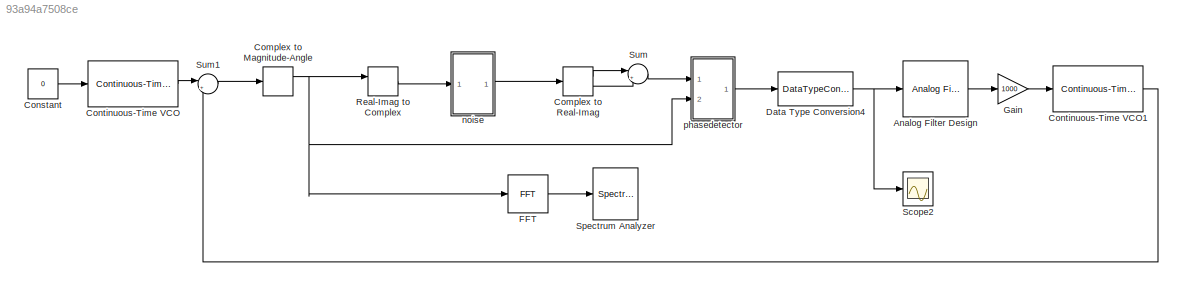
MODEL slx_93a94a7508ce
KIND model
CONFIG AbsTol = auto
CONFIG FixedStep = 1e-10
CONFIG MaxStep = auto
CONFIG MinStep = auto
CONFIG RelTol = 1e-3
CONFIG SampleTimeConstraint = Unconstrained
CONFIG Solver = FixedStepAuto
CONFIG SolverMode = Auto
CONFIG SolverName = FixedStepAuto
CONFIG StartTime = 0.0
CONFIG StopTime = 0.002
BLOCK [Reference] Analog Filter Design  REF=dsparch4/Analog
Filter Design
  Ports = [1, 1]
  SourceBlock = dsparch4/Analog\nFilter Design
  SourceType = Analog Filter Design
BLOCK [ComplexToMagnitudeAngle] Complex to Magnitude-Angle
  Ports = [1, 2]
BLOCK [ComplexToRealImag] Complex to Real-Imag
  Ports = [1, 2]
BLOCK [Constant] Constant
  Value = 0
BLOCK [Reference] Continuous-Time VCO  REF=commsynccomp2/Continuous-Time
VCO
  Ports = [1, 1]
  SourceBlock = commsynccomp2/Continuous-Time\nVCO
  SourceType = Continuous-Time VCO
BLOCK [Reference] Continuous-Time VCO1  REF=commsynccomp2/Continuous-Time
VCO
  Ports = [1, 1]
  SourceBlock = commsynccomp2/Continuous-Time\nVCO
  SourceType = Continuous-Time VCO
BLOCK [DataTypeConversion] Data Type Conversion4
  OutDataTypeStr = double
  RndMeth = Floor
  SaturateOnIntegerOverflow = off
BLOCK [Reference] FFT  REF=dspxfrm3/FFT
  Ports = [1, 1]
  SourceBlock = dspxfrm3/FFT
  SourceType = FFT
BLOCK [Gain] Gain
  Gain = 1000
  OutDataTypeStr = Inherit: Inherit via internal rule
  ParamDataTypeStr = Inherit: Inherit via internal rule
  SaturateOnIntegerOverflow = off
BLOCK [RealImagToComplex] Real-Imag to Complex
  Ports = [2, 1]
BLOCK [Scope] Scope2
  Ports = [1]
  ScopeSpecificationString = Simulink.scopes.TimeScopeBlockCfg('CurrentConfiguration', extmgr.ConfigurationSet(extmgr.Configuration('Core','General UI',true),extmgr.Configuration('Core','Source UI',true),extmgr.Configuration('Sources','WiredSimulink',true),extmgr.Configuration('Visuals','Time Domain',true,'SerializedDisplays',{struct('MinYLimReal','-12.5','MaxYLimReal','12.5','YLabelReal','','MinYLimMag','0.00000','MaxYLimMag...<+1417ch>
BLOCK [SpectrumAnalyzer] Spectrum Analyzer
  Ports = [1]
  ScopeSpecificationString = spbscopes.SpectrumAnalyzerBlockCfg('CurrentConfiguration', extmgr.ConfigurationSet(extmgr.Configuration('Core','General UI',true),extmgr.Configuration('Core','Source UI',true),extmgr.Configuration('Sources','WiredSimulink',true),extmgr.Configuration('Sources','Simulink',false),extmgr.Configuration('Sources','File',false),extmgr.Configuration('Sources','Workspace',false),extmgr.Configuration('Sourc...<+2866ch>
BLOCK [Sum] Sum
  IconShape = round
  InputSameDT = off
  Inputs = |++
  OutDataTypeStr = Inherit: Inherit via internal rule
  Ports = [2, 1]
  SaturateOnIntegerOverflow = off
BLOCK [Sum] Sum1
  IconShape = round
  InputSameDT = off
  Inputs = |++
  OutDataTypeStr = Inherit: Inherit via internal rule
  Ports = [2, 1]
  SaturateOnIntegerOverflow = off
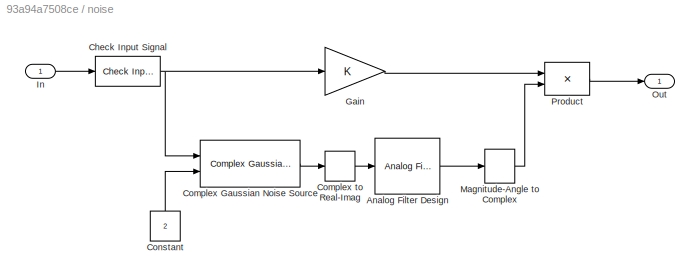
BLOCK [SubSystem] noise 
  Ports = [1, 1]
  RequestExecContextInheritance = off
  Variant = off
BLOCK [Reference] noise /Analog Filter Design  REF=dsparch4/Analog
Filter Design
  Ports = [1, 1]
  SourceBlock = dsparch4/Analog\nFilter Design
  SourceType = Analog Filter Design
BLOCK [Reference] noise /Check Input Signal  REF=rfmathmodels1/Mixer/Check
Input Signal
  Ports = [1, 1]
  SourceBlock = rfmathmodels1/Mixer/Check\nInput Signal
BLOCK [Reference] noise /Complex Gaussian Noise Source  REF=rfprivate1/Complex Gaussian
Noise Source
  Ports = [2, 1]
  SourceBlock = rfprivate1/Complex Gaussian\nNoise Source
  SourceType = Complex Gaussian Noise Source
BLOCK [ComplexToRealImag] noise /Complex to Real-Imag
  Output = Real
  Ports = [1, 1]
BLOCK [Constant] noise /Constant
  Value = 2
BLOCK [Gain] noise /Gain
BLOCK [Inport] noise /In
  IconDisplay = Port number
BLOCK [MagnitudeAngleToComplex] noise /Magnitude-Angle to Complex
  ConstantPart = 1
  Input = Angle
  Ports = [1, 1]
BLOCK [Outport] noise /Out
  IconDisplay = Port number
BLOCK [Product] noise /Product
  Ports = [2, 1]
  RndMeth = Floor
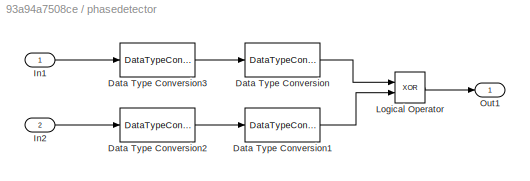
BLOCK [SubSystem] phasedetector 
  Ports = [2, 1]
  RequestExecContextInheritance = off
  Variant = off
BLOCK [DataTypeConversion] phasedetector /Data Type Conversion
  OutDataTypeStr = boolean
  RndMeth = Floor
  SaturateOnIntegerOverflow = off
BLOCK [DataTypeConversion] phasedetector /Data Type Conversion1
  OutDataTypeStr = boolean
  RndMeth = Floor
  SaturateOnIntegerOverflow = off
BLOCK [DataTypeConversion] phasedetector /Data Type Conversion2
  OutDataTypeStr = int32
  RndMeth = Floor
  SaturateOnIntegerOverflow = off
BLOCK [DataTypeConversion] phasedetector /Data Type Conversion3
  OutDataTypeStr = int32
  RndMeth = Floor
  SaturateOnIntegerOverflow = off
BLOCK [Inport] phasedetector /In1
  IconDisplay = Port number
BLOCK [Inport] phasedetector /In2
  IconDisplay = Port number
  Port = 2
BLOCK [Logic] phasedetector /Logical Operator
  AllPortsSameDT = off
  Operator = XOR
  OutDataTypeStr = boolean
  Ports = [2, 1]
BLOCK [Outport] phasedetector /Out1
  IconDisplay = Port number
LINE Analog Filter Design:1 -> Gain:1
NET Complex to Magnitude-Angle:1 -> FFT:1, Real-Imag to Complex:1, phasedetector :2
LINE Complex to Real-Imag:1 -> Sum:1
LINE Complex to Real-Imag:2 -> Sum:2
LINE Constant:1 -> Continuous-Time VCO:1
LINE Continuous-Time VCO1:1 -> Sum1:2
LINE Continuous-Time VCO:1 -> Sum1:1
NET Data Type Conversion4:1 -> Analog Filter Design:1, Scope2:1
LINE FFT:1 -> Spectrum Analyzer:1
LINE Gain:1 -> Continuous-Time VCO1:1
LINE Real-Imag to Complex:1 -> noise :1
LINE Sum1:1 -> Complex to Magnitude-Angle:1
LINE Sum:1 -> phasedetector :1
LINE noise /Analog Filter Design:1 -> noise /Magnitude-Angle to Complex:1
NET noise /Check Input Signal:1 -> noise /Complex Gaussian Noise Source:1, noise /Gain:1
LINE noise /Complex Gaussian Noise Source:1 -> noise /Complex to Real-Imag:1
LINE noise /Complex to Real-Imag:1 -> noise /Analog Filter Design:1
LINE noise /Constant:1 -> noise /Complex Gaussian Noise Source:2
LINE noise /Gain:1 -> noise /Product:1
LINE noise /In:1 -> noise /Check Input Signal:1
LINE noise /Magnitude-Angle to Complex:1 -> noise /Product:2
LINE noise /Product:1 -> noise /Out:1
LINE noise :1 -> Complex to Real-Imag:1
LINE phasedetector /Data Type Conversion1:1 -> phasedetector /Logical Operator:2
LINE phasedetector /Data Type Conversion2:1 -> phasedetector /Data Type Conversion1:1
LINE phasedetector /Data Type Conversion3:1 -> phasedetector /Data Type Conversion:1
LINE phasedetector /Data Type Conversion:1 -> phasedetector /Logical Operator:1
LINE phasedetector /In1:1 -> phasedetector /Data Type Conversion3:1
LINE phasedetector /In2:1 -> phasedetector /Data Type Conversion2:1
LINE phasedetector /Logical Operator:1 -> phasedetector /Out1:1
LINE phasedetector :1 -> Data Type Conversion4:1
note: NET lines group one-source signal fan-out (src -> all destinations, sorted); 1:1 wires keep LINE
